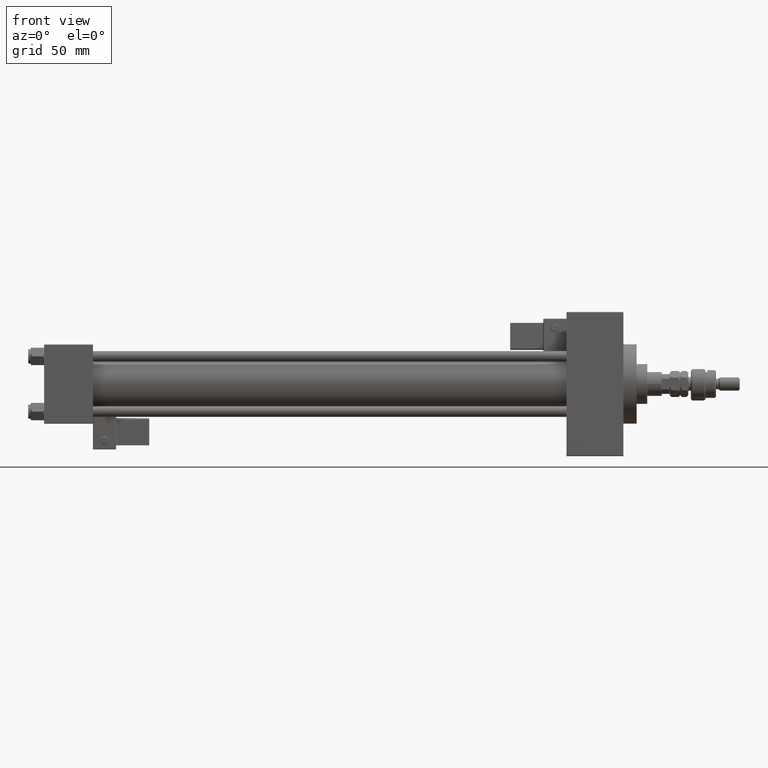
[diagram: clean part render]
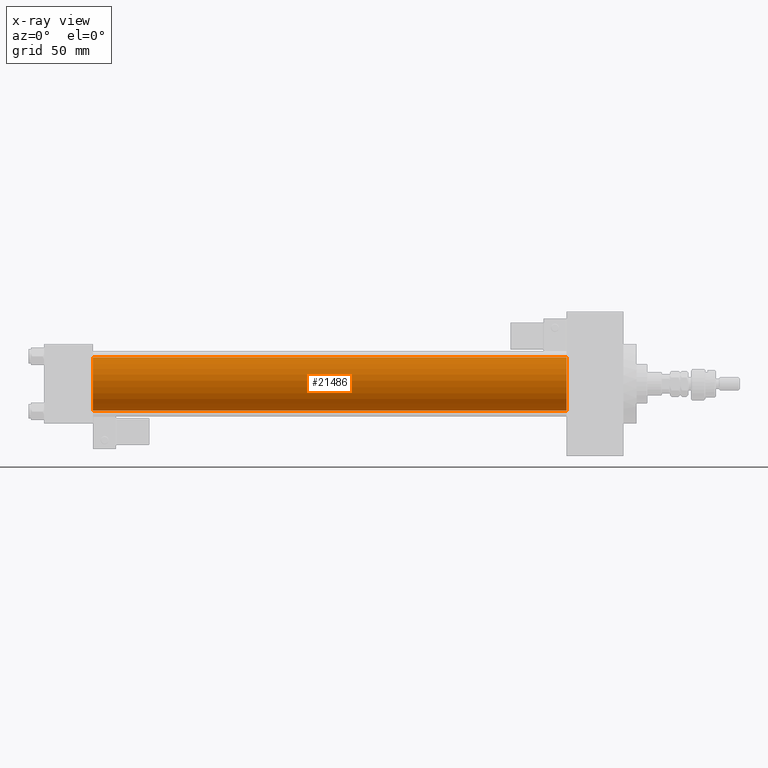
[diagram: x-ray — body ghosted, one internal face saturated and labeled with its STEP entity id]
A machine part, front view, then the same camera in x-ray: the body is ghosted and one INTERNAL B-rep face — a face not visible from any outside direction — is saturated and labeled: STEP entity #21486.
In plain terms, the highlighted cylindrical surface (edge-blend (fillet) strip) has radius 20 mm, axis along (-1, -0, -0).
Its self-contained STEP definition (entity closure, byte-faithful):
#23 = ORIENTED_EDGE ( 'NONE', *, *, #4504, .T. ) ;
#1777 = CARTESIAN_POINT ( 'NONE',  ( 37.00000000000000000, -2.602085213965210642E-15, 20.00000000000000000 ) ) ;
#4504 = EDGE_CURVE ( 'NONE', #20061, #8949, #43009, .T. ) ;
#4577 = VERTEX_POINT ( 'NONE', #1777 ) ;
#7944 = CYLINDRICAL_SURFACE ( 'NONE', #12785, 20.00000000000000000 ) ;
#8949 = VERTEX_POINT ( 'NONE', #44723 ) ;
#9530 = DIRECTION ( 'NONE',  ( 1.000000000000000000, 0.000000000000000000, 0.000000000000000000 ) ) ;
#9897 = DIRECTION ( 'NONE',  ( 0.000000000000000000, 0.000000000000000000, -1.000000000000000000 ) ) ;
#12066 = CARTESIAN_POINT ( 'NONE',  ( 394.9999999999999432, -2.602085213965210642E-15, 0.000000000000000000 ) ) ;
#12785 = AXIS2_PLACEMENT_3D ( 'NONE', #12066, #28801, #45579 ) ;
#13343 = EDGE_CURVE ( 'NONE', #4577, #8949, #19564, .T. ) ;
#13446 = ORIENTED_EDGE ( 'NONE', *, *, #51476, .F. ) ;
#16711 = ORIENTED_EDGE ( 'NONE', *, *, #21229, .T. ) ;
#18281 = CARTESIAN_POINT ( 'NONE',  ( 37.00000000000000000, -2.602085213965210642E-15, 0.000000000000000000 ) ) ;
#18649 = CARTESIAN_POINT ( 'NONE',  ( 394.9999999999999432, -2.602085213965210642E-15, 0.000000000000000000 ) ) ;
#18786 = CARTESIAN_POINT ( 'NONE',  ( 394.9999999999999432, -1.527916156705046464E-16, -20.00000000000000000 ) ) ;
#19564 = CIRCLE ( 'NONE', #50285, 20.00000000000000000 ) ;
#20061 = VERTEX_POINT ( 'NONE', #46907 ) ;
#21229 = EDGE_CURVE ( 'NONE', #48288, #20061, #52261, .T. ) ;
#21486 = ADVANCED_FACE ( 'NONE', ( #49700 ), #7944, .F. ) ;
#22488 = DIRECTION ( 'NONE',  ( 1.000000000000000000, 0.000000000000000000, 0.000000000000000000 ) ) ;
#22602 = EDGE_LOOP ( 'NONE', ( #16711, #23, #54183, #13446 ) ) ;
#26253 = DIRECTION ( 'NONE',  ( 0.000000000000000000, 0.000000000000000000, -1.000000000000000000 ) ) ;
#26329 = VECTOR ( 'NONE', #51765, 1000.000000000000000 ) ;
#27625 = VECTOR ( 'NONE', #47703, 1000.000000000000000 ) ;
#28565 = AXIS2_PLACEMENT_3D ( 'NONE', #18649, #22488, #9897 ) ;
#28801 = DIRECTION ( 'NONE',  ( -1.000000000000000000, -0.000000000000000000, -0.000000000000000000 ) ) ;
#31277 = CARTESIAN_POINT ( 'NONE',  ( 394.9999999999999432, -2.602085213965210642E-15, 20.00000000000000000 ) ) ;
#34505 = LINE ( 'NONE', #50748, #27625 ) ;
#43009 = LINE ( 'NONE', #18786, #26329 ) ;
#44723 = CARTESIAN_POINT ( 'NONE',  ( 37.00000000000000000, -1.527916156705046464E-16, -20.00000000000000000 ) ) ;
#45579 = DIRECTION ( 'NONE',  ( 0.000000000000000000, 0.000000000000000000, 1.000000000000000000 ) ) ;
#46907 = CARTESIAN_POINT ( 'NONE',  ( 394.9999999999999432, -1.527916156705046464E-16, -20.00000000000000000 ) ) ;
#47703 = DIRECTION ( 'NONE',  ( -1.000000000000000000, -0.000000000000000000, -0.000000000000000000 ) ) ;
#48288 = VERTEX_POINT ( 'NONE', #31277 ) ;
#49700 = FACE_OUTER_BOUND ( 'NONE', #22602, .T. ) ;
#50285 = AXIS2_PLACEMENT_3D ( 'NONE', #18281, #9530, #26253 ) ;
#50748 = CARTESIAN_POINT ( 'NONE',  ( 394.9999999999999432, -2.602085213965210642E-15, 20.00000000000000000 ) ) ;
#51476 = EDGE_CURVE ( 'NONE', #48288, #4577, #34505, .T. ) ;
#51765 = DIRECTION ( 'NONE',  ( -1.000000000000000000, -0.000000000000000000, -0.000000000000000000 ) ) ;
#52261 = CIRCLE ( 'NONE', #28565, 20.00000000000000000 ) ;
#54183 = ORIENTED_EDGE ( 'NONE', *, *, #13343, .F. ) ;